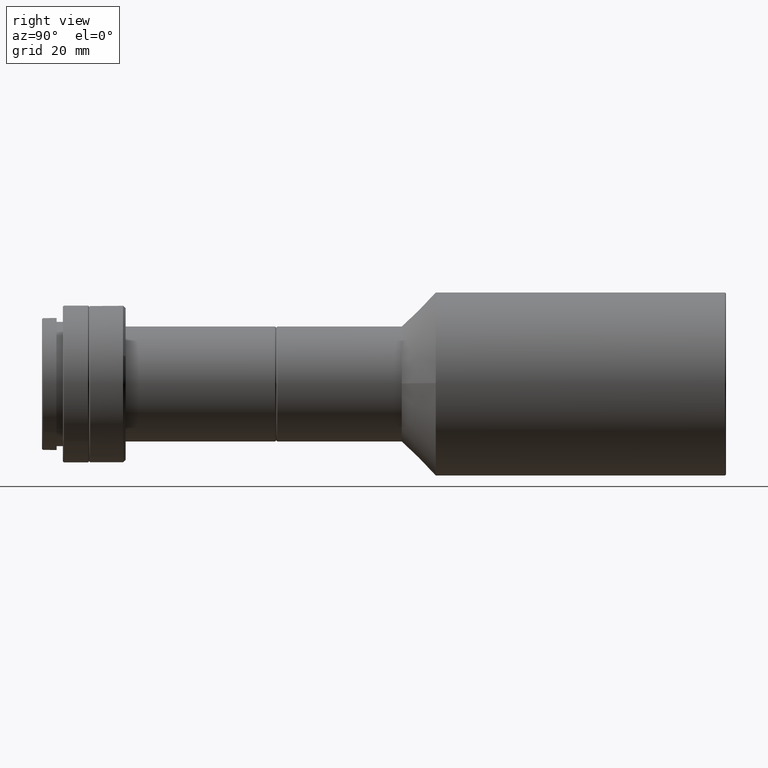
[diagram: clean part render]
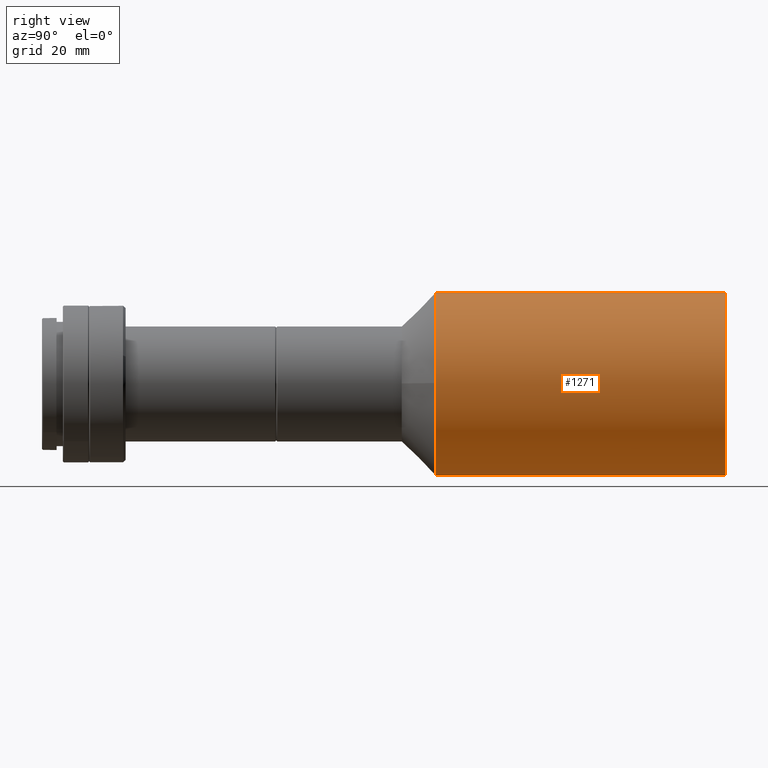
[diagram: same view with one face highlighted and labeled with its STEP entity id]
A machine part, right view. The second image highlights one B-rep face of the part: STEP entity #1271.
In plain terms, the highlighted cylindrical surface (partial cylindrical patch) has radius 17.5 mm, axis along (0, 1, 0).
Its self-contained STEP definition (entity closure, byte-faithful):
#131 = ORIENTED_EDGE ( 'NONE', *, *, #4866, .T. ) ;
#417 = CARTESIAN_POINT ( 'NONE',  ( 8.250592294294199450E-16, 69.29999999999999716, 1.381180292636150134E-15 ) ) ;
#559 = VERTEX_POINT ( 'NONE', #5197 ) ;
#572 = ORIENTED_EDGE ( 'NONE', *, *, #4939, .T. ) ;
#610 = AXIS2_PLACEMENT_3D ( 'NONE', #1483, #1544, #2798 ) ;
#627 = DIRECTION ( 'NONE',  ( -0.01003568201483279881, 0.000000000000000000, 0.9999496412752479912 ) ) ;
#636 = AXIS2_PLACEMENT_3D ( 'NONE', #417, #3477, #2951 ) ;
#880 = ORIENTED_EDGE ( 'NONE', *, *, #4448, .T. ) ;
#881 = VERTEX_POINT ( 'NONE', #3365 ) ;
#975 = CIRCLE ( 'NONE', #4080, 17.50000000000000355 ) ;
#985 = CARTESIAN_POINT ( 'NONE',  ( -0.1756244352595732194, 38.80000000000000426, 17.49911872231684384 ) ) ;
#1180 = DIRECTION ( 'NONE',  ( -0.01003568201483279881, 0.000000000000000000, 0.9999496412752479912 ) ) ;
#1271 = ADVANCED_FACE ( 'NONE', ( #4176 ), #1608, .T. ) ;
#1277 = EDGE_CURVE ( 'NONE', #2672, #5300, #3646, .T. ) ;
#1483 = CARTESIAN_POINT ( 'NONE',  ( 8.250592294294199450E-16, 69.29999999999999716, 1.381180292636150134E-15 ) ) ;
#1544 = DIRECTION ( 'NONE',  ( 0.000000000000000000, 1.000000000000000000, 0.000000000000000000 ) ) ;
#1552 = CARTESIAN_POINT ( 'NONE',  ( 0.1756244352595769942, 69.29999999999999716, -17.49911872231684384 ) ) ;
#1608 = CYLINDRICAL_SURFACE ( 'NONE', #2747, 17.50000000000000355 ) ;
#1730 = EDGE_CURVE ( 'NONE', #559, #4714, #4535, .T. ) ;
#1871 = VECTOR ( 'NONE', #2146, 1000.000000000000000 ) ;
#2146 = DIRECTION ( 'NONE',  ( 0.000000000000000000, 1.000000000000000000, 0.000000000000000000 ) ) ;
#2353 = CARTESIAN_POINT ( 'NONE',  ( 8.250592294294199450E-16, 124.6000000000000085, 1.381180292636150134E-15 ) ) ;
#2604 = ORIENTED_EDGE ( 'NONE', *, *, #1277, .T. ) ;
#2634 = VECTOR ( 'NONE', #5332, 1000.000000000000000 ) ;
#2672 = VERTEX_POINT ( 'NONE', #4466 ) ;
#2722 = ORIENTED_EDGE ( 'NONE', *, *, #1730, .F. ) ;
#2747 = AXIS2_PLACEMENT_3D ( 'NONE', #5484, #2808, #627 ) ;
#2798 = DIRECTION ( 'NONE',  ( -0.01003568201483279881, 0.000000000000000000, 0.9999496412752479912 ) ) ;
#2808 = DIRECTION ( 'NONE',  ( 0.000000000000000000, 1.000000000000000000, 0.000000000000000000 ) ) ;
#2870 = DIRECTION ( 'NONE',  ( -0.000000000000000000, -1.000000000000000000, -0.000000000000000000 ) ) ;
#2951 = DIRECTION ( 'NONE',  ( -0.01003568201483279881, 0.000000000000000000, 0.9999496412752479912 ) ) ;
#3365 = CARTESIAN_POINT ( 'NONE',  ( 0.1756244352595748293, 124.6000000000000085, -17.49911872231684384 ) ) ;
#3477 = DIRECTION ( 'NONE',  ( 0.000000000000000000, 1.000000000000000000, 0.000000000000000000 ) ) ;
#3646 = CIRCLE ( 'NONE', #636, 17.50000000000000355 ) ;
#4080 = AXIS2_PLACEMENT_3D ( 'NONE', #2353, #2870, #1180 ) ;
#4176 = FACE_OUTER_BOUND ( 'NONE', #4773, .T. ) ;
#4262 = CIRCLE ( 'NONE', #610, 17.50000000000000355 ) ;
#4448 = EDGE_CURVE ( 'NONE', #559, #2672, #4262, .T. ) ;
#4466 = CARTESIAN_POINT ( 'NONE',  ( 17.49911872231686516, 69.29999999999999716, 0.1756244352595777714 ) ) ;
#4535 = LINE ( 'NONE', #985, #2634 ) ;
#4714 = VERTEX_POINT ( 'NONE', #5618 ) ;
#4773 = EDGE_LOOP ( 'NONE', ( #2604, #572, #131, #2722, #880 ) ) ;
#4866 = EDGE_CURVE ( 'NONE', #881, #4714, #975, .T. ) ;
#4939 = EDGE_CURVE ( 'NONE', #5300, #881, #5175, .T. ) ;
#5175 = LINE ( 'NONE', #5226, #1871 ) ;
#5197 = CARTESIAN_POINT ( 'NONE',  ( -0.1756244352595732194, 69.29999999999999716, 17.49911872231684384 ) ) ;
#5226 = CARTESIAN_POINT ( 'NONE',  ( 0.1756244352595769942, 38.80000000000000426, -17.49911872231684384 ) ) ;
#5300 = VERTEX_POINT ( 'NONE', #1552 ) ;
#5332 = DIRECTION ( 'NONE',  ( 0.000000000000000000, 1.000000000000000000, 0.000000000000000000 ) ) ;
#5484 = CARTESIAN_POINT ( 'NONE',  ( 8.250592294294199450E-16, 38.80000000000000426, 1.381180292636150134E-15 ) ) ;
#5618 = CARTESIAN_POINT ( 'NONE',  ( -0.1756244352595710545, 124.6000000000000085, 17.49911872231684384 ) ) ;